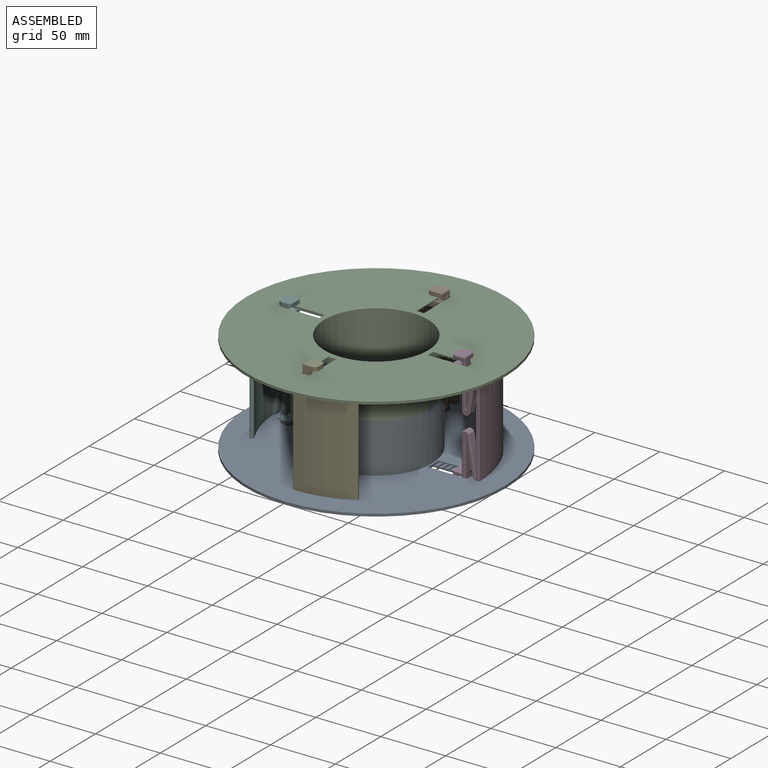
[diagram: assembled view]
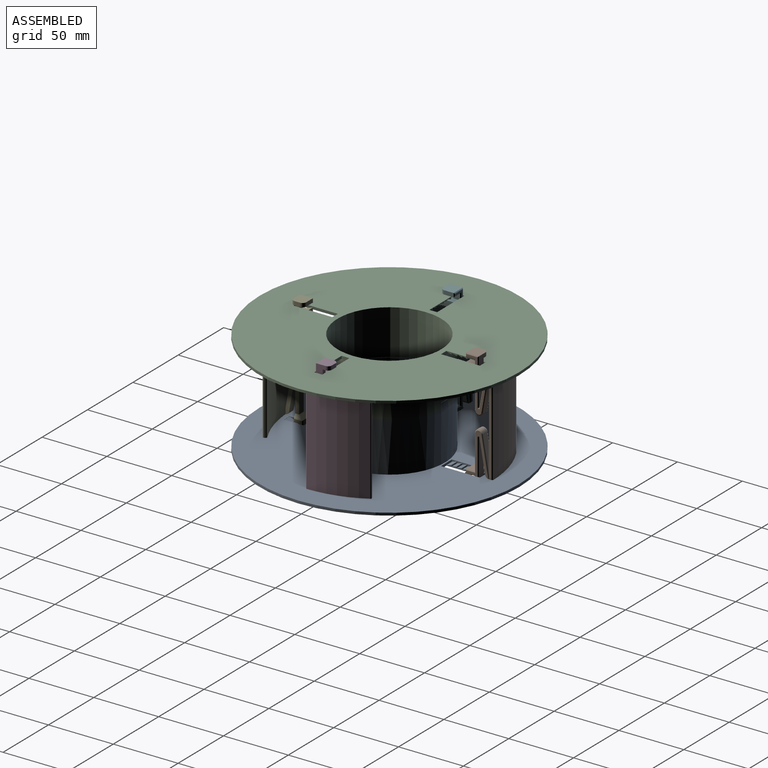
[diagram: assembled view, second angle]
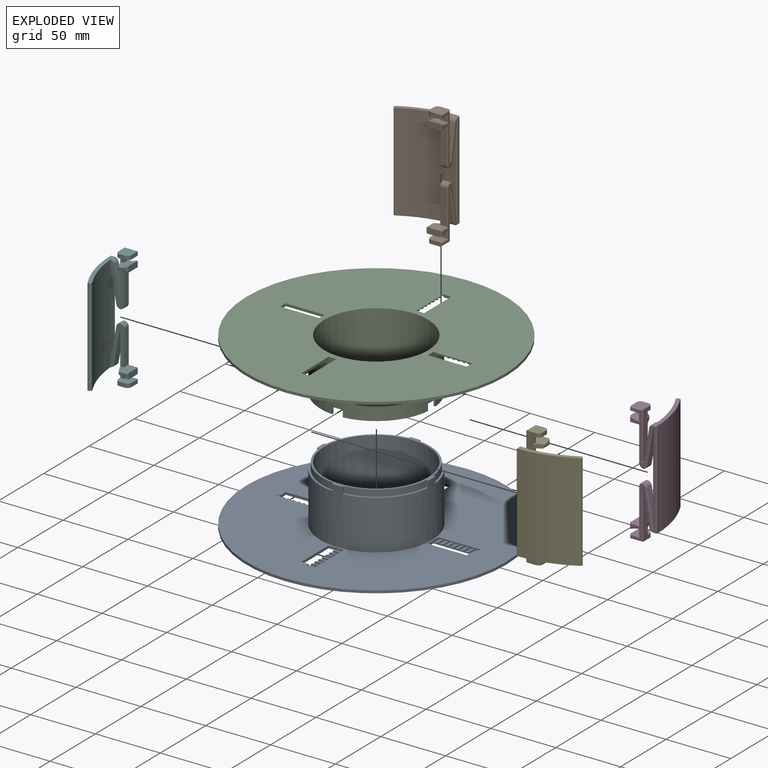
[diagram: exploded view]
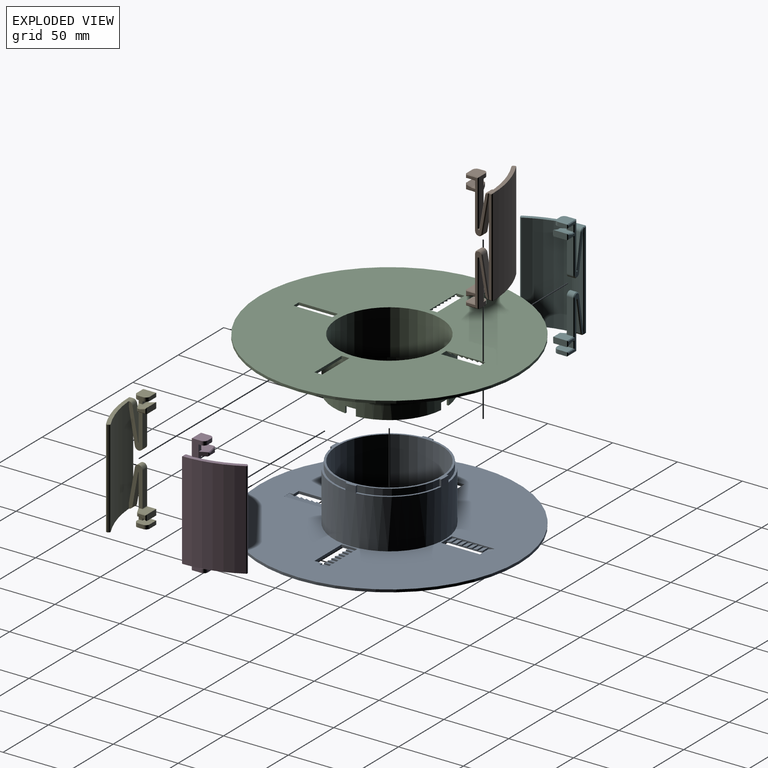
[diagram: exploded view, second angle]
ASSEMBLY  parts=6 mates=2
PART A: 110 faces, bbox 200x200x45 mm
  f0: plane 38.81x38.81mm, normal (0,0,1), area 87.5mm2, adj f81,f97,f102,f109
  f1: plane 38.81x38.81mm, normal (0,0,1), area 87.5mm2, adj f81,f99,f105,f106
  f2: plane 38.81x38.81mm, normal (0,0,1), area 87.5mm2, adj f81,f100,f104,f108
  f3: plane 6x1.2mm, normal (1,0,0), area 7.2mm2, adj f5,f8,f20,f23
  f4: plane 6x0.1mm, normal (-1,0,0), area 0.6mm2, adj f5,f6,f20,f69
  f5: plane 6x5mm, normal (-0.29,0,0.96), area 31.3mm2, adj f3,f4,f6,f20,f23
  f6: plane 3x1mm, normal (0,1,0), area 1.7mm2, adj f4,f5,f22,f69
  f7: plane 6x1.2mm, normal (1,0,0), area 7.2mm2, adj f8,f10,f20,f23
  f8: plane 6x4mm, normal (-0.29,0,0.96), area 25.1mm2, adj f3,f7,f20,f23
  f9: plane 6x1.2mm, normal (1,0,0), area 7.2mm2, adj f10,f12,f20,f23
  f10: plane 6x4mm, normal (-0.29,0,0.96), area 25.1mm2, adj f7,f9,f20,f23
  f11: plane 6x1.2mm, normal (1,0,0), area 7.2mm2, adj f12,f14,f20,f23
  f12: plane 6x4mm, normal (-0.29,0,0.96), area 25.1mm2, adj f9,f11,f20,f23
  f13: plane 6x1.2mm, normal (1,0,0), area 7.2mm2, adj f14,f16,f20,f23
  f14: plane 6x4mm, normal (-0.29,0,0.96), area 25.1mm2, adj f11,f13,f20,f23
  f15: plane 6x1.2mm, normal (1,0,0), area 7.2mm2, adj f16,f18,f20,f23
  f16: plane 6x4mm, normal (-0.29,0,0.96), area 25.1mm2, adj f13,f15,f20,f23
  f17: plane 6x1.2mm, normal (1,0,0), area 7.2mm2, adj f18,f19,f20,f23
  f18: plane 6x4mm, normal (-0.29,0,0.96), area 25.1mm2, adj f15,f17,f20,f23
  f19: plane 6x4mm, normal (-0.29,0,0.96), area 25.1mm2, adj f17,f20,f23,f24
  f20: plane 33x1.6mm, normal (0,-1,0), area 32.3mm2, adj f3,f4,f5,f7,f8,f9,f10,f11
  f21: plane 30x2mm, normal (0,1,0), area 60mm2, adj f22,f24,f69,f78
  f22: plane 6x2mm, normal (-1,0,0), area 12mm2, adj f6,f21,f23,f69,f78
  f23: plane 30x1.6mm, normal (0,-1,0), area 29.4mm2, adj f3,f5,f7,f8,f9,f10,f11,f12
  f24: plane 12x2mm, normal (1,0,0), area 21.6mm2, adj f19,f20,f21,f23,f69,f78
  f25: plane 6x1.2mm, normal (0,-1,0), area 7.2mm2, adj f27,f30,f42,f45
  f26: plane 6x0.1mm, normal (0,1,0), area 0.6mm2, adj f27,f28,f42,f69
  f27: plane 6x5mm, normal (0,0.29,0.96), area 31.3mm2, adj f25,f26,f28,f42,f45
  f28: plane 3x1mm, normal (1,0,0), area 1.7mm2, adj f26,f27,f44,f69
  f29: plane 6x1.2mm, normal (0,-1,0), area 7.2mm2, adj f30,f32,f42,f45
  f30: plane 6x4mm, normal (0,0.29,0.96), area 25.1mm2, adj f25,f29,f42,f45
  f31: plane 6x1.2mm, normal (0,-1,0), area 7.2mm2, adj f32,f34,f42,f45
  f32: plane 6x4mm, normal (0,0.29,0.96), area 25.1mm2, adj f29,f31,f42,f45
  f33: plane 6x1.2mm, normal (0,-1,0), area 7.2mm2, adj f34,f36,f42,f45
  f34: plane 6x4mm, normal (0,0.29,0.96), area 25.1mm2, adj f31,f33,f42,f45
  f35: plane 6x1.2mm, normal (0,-1,0), area 7.2mm2, adj f36,f38,f42,f45
  f36: plane 6x4mm, normal (0,0.29,0.96), area 25.1mm2, adj f33,f35,f42,f45
  f37: plane 6x1.2mm, normal (0,-1,0), area 7.2mm2, adj f38,f40,f42,f45
  f38: plane 6x4mm, normal (0,0.29,0.96), area 25.1mm2, adj f35,f37,f42,f45
  f39: plane 6x1.2mm, normal (0,-1,0), area 7.2mm2, adj f40,f41,f42,f45
  f40: plane 6x4mm, normal (0,0.29,0.96), area 25.1mm2, adj f37,f39,f42,f45
  f41: plane 6x4mm, normal (0,0.29,0.96), area 25.1mm2, adj f39,f42,f45,f46
  f42: plane 33x1.6mm, normal (-1,0,0), area 32.3mm2, adj f25,f26,f27,f29,f30,f31,f32,f33
  f43: plane 30x2mm, normal (1,0,0), area 60mm2, adj f44,f46,f69,f78
  f44: plane 6x2mm, normal (0,1,0), area 12mm2, adj f28,f43,f45,f69,f78
  f45: plane 30x1.6mm, normal (-1,0,0), area 29.4mm2, adj f25,f27,f29,f30,f31,f32,f33,f34
  f46: plane 12x2mm, normal (0,-1,0), area 21.6mm2, adj f41,f42,f43,f45,f69,f78
  f47: plane 6x1.2mm, normal (-1,0,0), area 7.2mm2, adj f49,f52,f64,f67
  f48: plane 6x0.1mm, normal (1,0,0), area 0.6mm2, adj f49,f50,f64,f69
  f49: plane 6x5mm, normal (0.29,0,0.96), area 31.3mm2, adj f47,f48,f50,f64,f67
  f50: plane 3x1mm, normal (0,-1,0), area 1.7mm2, adj f48,f49,f66,f69
  f51: plane 6x1.2mm, normal (-1,0,0), area 7.2mm2, adj f52,f54,f64,f67
  f52: plane 6x4mm, normal (0.29,0,0.96), area 25.1mm2, adj f47,f51,f64,f67
  f53: plane 6x1.2mm, normal (-1,0,0), area 7.2mm2, adj f54,f56,f64,f67
  f54: plane 6x4mm, normal (0.29,0,0.96), area 25.1mm2, adj f51,f53,f64,f67
  f55: plane 6x1.2mm, normal (-1,0,0), area 7.2mm2, adj f56,f58,f64,f67
  f56: plane 6x4mm, normal (0.29,0,0.96), area 25.1mm2, adj f53,f55,f64,f67
  f57: plane 6x1.2mm, normal (-1,0,0), area 7.2mm2, adj f58,f60,f64,f67
  f58: plane 6x4mm, normal (0.29,0,0.96), area 25.1mm2, adj f55,f57,f64,f67
  f59: plane 6x1.2mm, normal (-1,0,0), area 7.2mm2, adj f60,f62,f64,f67
  f60: plane 6x4mm, normal (0.29,0,0.96), area 25.1mm2, adj f57,f59,f64,f67
  f61: plane 6x1.2mm, normal (-1,0,0), area 7.2mm2, adj f62,f63,f64,f67
  f62: plane 6x4mm, normal (0.29,0,0.96), area 25.1mm2, adj f59,f61,f64,f67
  f63: plane 6x4mm, normal (0.29,0,0.96), area 25.1mm2, adj f61,f64,f67,f68
  f64: plane 33x1.6mm, normal (0,1,0), area 32.3mm2, adj f47,f48,f49,f51,f52,f53,f54,f55
  f65: plane 30x2mm, normal (0,-1,0), area 60mm2, adj f66,f68,f69,f78
  f66: plane 6x2mm, normal (1,0,0), area 12mm2, adj f50,f65,f67,f69,f78
  f67: plane 30x1.6mm, normal (0,1,0), area 29.4mm2, adj f47,f49,f51,f52,f53,f54,f55,f56
  f68: plane 12x2mm, normal (-1,0,0), area 21.6mm2, adj f63,f64,f65,f67,f69,f78
  f69: plane 200x200mm, normal (0,0,1), area 24095.1mm2, adj f4,f6,f20,f21,f22,f24,f26,f28
  f70: plane 6x4mm, normal (0,-0.29,0.96), area 25.1mm2, adj f77,f86,f92,f93
  f71: plane 6x4mm, normal (0,-0.29,0.96), area 25.1mm2, adj f77,f86,f91,f92
  f72: plane 6x4mm, normal (0,-0.29,0.96), area 25.1mm2, adj f77,f86,f90,f91
  f73: plane 6x4mm, normal (0,-0.29,0.96), area 25.1mm2, adj f77,f86,f89,f90
  f74: plane 6x4mm, normal (0,-0.29,0.96), area 25.1mm2, adj f77,f86,f88,f89
  f75: plane 6x4mm, normal (0,-0.29,0.96), area 25.1mm2, adj f77,f86,f87,f88
  f76: plane 6x4mm, normal (0,-0.29,0.96), area 25.1mm2, adj f77,f85,f86,f87
  f77: plane 30x1.6mm, normal (1,0,0), area 29.4mm2, adj f70,f71,f72,f73,f74,f75,f76,f78
  f78: plane 200x200mm, normal (0,0,-1), area 25669.4mm2, adj f21,f22,f23,f24,f43,f44,f45,f46
  f79: cylinder r=100mm len=200mm, axis (0,0,-1), area 1256.6mm2, adj f69,f78
  f80: cylinder r=40mm len=80mm, axis (0,0,-1), area 11309.7mm2, adj f78,f101
  f81: cylinder r=43mm len=86mm, axis (0,0,-1), area 10427mm2, adj f0,f1,f2,f69,f82,f101,f102,f103
  f82: plane 38.81x38.81mm, normal (0,0,1), area 87.5mm2, adj f81,f98,f103,f107
  f83: plane 30x2mm, normal (-1,0,0), area 60mm2, adj f69,f78,f84,f85
  f84: plane 6x2mm, normal (0,-1,0), area 12mm2, adj f69,f77,f78,f83,f96
  f85: plane 12x2mm, normal (0,1,0), area 21.6mm2, adj f69,f76,f77,f78,f83,f86
  f86: plane 33x1.6mm, normal (1,0,0), area 32.3mm2, adj f69,f70,f71,f72,f73,f74,f75,f76
  f87: plane 6x1.2mm, normal (0,1,0), area 7.2mm2, adj f75,f76,f77,f86
  f88: plane 6x1.2mm, normal (0,1,0), area 7.2mm2, adj f74,f75,f77,f86
  f89: plane 6x1.2mm, normal (0,1,0), area 7.2mm2, adj f73,f74,f77,f86
  f90: plane 6x1.2mm, normal (0,1,0), area 7.2mm2, adj f72,f73,f77,f86
  f91: plane 6x1.2mm, normal (0,1,0), area 7.2mm2, adj f71,f72,f77,f86
  f92: plane 6x1.2mm, normal (0,1,0), area 7.2mm2, adj f70,f71,f77,f86
  f93: plane 6x1.2mm, normal (0,1,0), area 7.2mm2, adj f70,f77,f86,f94
  f94: plane 6x5mm, normal (0,-0.29,0.96), area 31.3mm2, adj f77,f86,f93,f95,f96
  f95: plane 6x0.1mm, normal (0,-1,0), area 0.6mm2, adj f69,f86,f94,f96
  f96: plane 3x1mm, normal (-1,0,0), area 1.7mm2, adj f69,f84,f94,f95
  f97: cylinder r=41.5mm len=37.31mm, axis (0,0,-1), area 285.9mm2, adj f0,f101,f102,f109
  f98: cylinder r=41.5mm len=37.31mm, axis (0,0,-1), area 285.9mm2, adj f82,f101,f103,f107
  f99: cylinder r=41.5mm len=37.31mm, axis (0,0,-1), area 285.9mm2, adj f1,f101,f105,f106
  f100: cylinder r=41.5mm len=37.31mm, axis (0,0,-1), area 285.9mm2, adj f2,f101,f104,f108
  f101: plane 86x86mm, normal (0,0,1), area 432.1mm2, adj f80,f81,f97,f98,f99,f100,f102,f103
  f102: plane 5x1.51mm, normal (0,-1,0), area 7.5mm2, adj f0,f81,f97,f101
  f103: plane 5x1.51mm, normal (0,1,0), area 7.5mm2, adj f81,f82,f98,f101
  f104: plane 5x1.51mm, normal (0,-1,0), area 7.5mm2, adj f2,f81,f100,f101
  f105: plane 5x1.51mm, normal (0,1,0), area 7.5mm2, adj f1,f81,f99,f101
  f106: plane 5x1.51mm, normal (1,0,0), area 7.5mm2, adj f1,f81,f99,f101
  f107: plane 5x1.51mm, normal (-1,0,0), area 7.5mm2, adj f81,f82,f98,f101
  f108: plane 5x1.51mm, normal (1,0,0), area 7.5mm2, adj f2,f81,f100,f101
  f109: plane 5x1.51mm, normal (-1,0,0), area 7.5mm2, adj f0,f81,f97,f101
PART B: 102 faces, bbox 20.8x92.1x42.7 mm
  f0: plane 39.8x16.93mm, normal (0,0,-1), area 158.6mm2, adj f52,f53,f56,f57,f60,f61,f64,f65
  f1: plane 73.8x1.8mm, normal (0,0,-1), area 132.8mm2, adj f78,f82,f83,f85
  f2: plane 32.49x11.02mm, normal (0,0,1), area 182.7mm2, adj f4,f5,f9,f11,f16,f18,f23,f24
  f3: plane 5.1x4.5mm, normal (1,0,0), area 22.9mm2, adj f8,f12,f55,f101
  f4: plane 27.01x5.1mm, normal (-0.98,0.17,0), area 137.8mm2, adj f2,f16,f23,f84
  f5: plane 35.71x7.1mm, normal (-1,0,0), area 188.1mm2, adj f2,f6,f8,f12,f22,f25,f27,f66
  f6: plane 10.1x10mm, normal (0,-1,0), area 97.1mm2, adj f5,f7,f26,f27,f28,f62
  f7: plane 7.1x3mm, normal (1,0,0), area 21.3mm2, adj f6,f8,f28,f58
  f8: plane 10.1x10mm, normal (0,1,0), area 81.8mm2, adj f3,f5,f7,f12,f26,f27,f28,f54
  f9: plane 26.5x5.1mm, normal (1,0,0), area 135.2mm2, adj f2,f23,f75,f100
  f10: plane 42x13.75mm, normal (0,-1,0), area 130.4mm2, adj f14,f15,f16,f78,f83,f86,f87
  f11: plane 24.77x5.1mm, normal (0.98,-0.17,0), area 128.3mm2, adj f2,f24,f25,f74
  f12: plane 5x3.5mm, normal (0,0,1), area 15.1mm2, adj f3,f5,f8,f19,f101
  f13: plane 39.8x16.93mm, normal (0,0,-1), area 158.6mm2, adj f54,f55,f58,f59,f62,f63,f66,f67
  f14: plane 75x0.87mm, normal (0.5,0,0.87), area 75mm2, adj f10,f37,f86,f87
  f15: cylinder r=85.94mm len=75mm, axis (0,1,0), area 3253.8mm2, adj f10,f37,f78,f87
  f16: cylinder r=82.94mm len=75mm, axis (0,1,0), area 3103.5mm2, adj f2,f4,f10,f24,f29,f31,f37,f47
  f17: plane 10.5x4.5mm, normal (1,0,0), area 47.2mm2, adj f18,f20,f67,f94
  f18: plane 10.5x10mm, normal (0,1,0), area 79.9mm2, adj f2,f17,f22,f71,f96,f100
  f19: plane 10.5x5mm, normal (0,-1,0), area 27.4mm2, adj f12,f20,f22,f59,f95,f101
  f20: plane 10.5x5mm, normal (-0.29,-0.96,0), area 54.8mm2, adj f17,f19,f63,f93
  f21: plane 6.03x3.09mm, normal (0,0,1), area 13.6mm2, adj f93,f94,f95,f96,f97
  f22: plane 5.67x3mm, normal (-0.89,0,0.45), area 18.9mm2, adj f5,f18,f19,f95,f96,f97
  f23: cylinder r=3mm len=5.95mm, axis (0,0,-1), area 45.4mm2, adj f2,f4,f9,f80
  f24: cylinder r=3mm len=5.1mm, axis (0,0,-1), area 20.9mm2, adj f2,f11,f16,f79
  f25: cylinder r=0.2mm len=5.1mm, axis (0,0,1), area 3mm2, adj f2,f5,f11,f70
  f26: plane 4x3mm, normal (0,0,1), area 12mm2, adj f6,f8,f27,f28
  f27: cylinder r=3mm len=3mm, axis (0,1,0), area 14.1mm2, adj f5,f6,f8,f26
  f28: cylinder r=3mm len=3mm, axis (0,-1,0), area 14.1mm2, adj f6,f7,f8,f26
  f29: plane 32.49x11.02mm, normal (0,0,1), area 182.7mm2, adj f16,f31,f32,f36,f38,f41,f46,f47
  f30: plane 5.1x4.5mm, normal (1,0,0), area 22.9mm2, adj f35,f39,f52,f98
  f31: plane 27.01x5.1mm, normal (-0.98,-0.17,0), area 137.8mm2, adj f16,f29,f46,f81
  f32: plane 35.71x7.1mm, normal (-1,0,0), area 188.1mm2, adj f29,f33,f35,f39,f45,f48,f50,f65
  f33: plane 10.1x10mm, normal (0,1,0), area 97.1mm2, adj f32,f34,f49,f50,f51,f61
  f34: plane 7.1x3mm, normal (1,0,0), area 21.3mm2, adj f33,f35,f51,f57
  f35: plane 10.1x10mm, normal (0,-1,0), area 81.8mm2, adj f30,f32,f34,f39,f49,f50,f51,f53
  f36: plane 26.5x5.1mm, normal (1,0,0), area 135.2mm2, adj f29,f46,f72,f99
  f37: plane 42x13.75mm, normal (0,1,0), area 130.4mm2, adj f14,f15,f16,f78,f82,f86,f87
  f38: plane 24.77x5.1mm, normal (0.98,0.17,0), area 128.3mm2, adj f29,f47,f48,f73
  f39: plane 5x3.5mm, normal (0,0,1), area 15.1mm2, adj f30,f32,f35,f42,f98
  f40: plane 10.5x4.5mm, normal (1,0,0), area 47.2mm2, adj f41,f43,f64,f89
  f41: plane 10.5x10mm, normal (0,-1,0), area 79.9mm2, adj f29,f40,f45,f68,f91,f99
  f42: plane 10.5x5mm, normal (0,1,0), area 27.4mm2, adj f39,f43,f45,f56,f90,f98
  f43: plane 10.5x5mm, normal (-0.29,0.96,0), area 54.8mm2, adj f40,f42,f60,f88
  f44: plane 6.03x3.09mm, normal (0,0,1), area 13.6mm2, adj f88,f89,f90,f91,f92
  f45: plane 5.67x3mm, normal (-0.89,0,0.45), area 18.9mm2, adj f32,f41,f42,f90,f91,f92
  f46: cylinder r=3mm len=5.95mm, axis (0,0,-1), area 45.4mm2, adj f29,f31,f36,f76
  f47: cylinder r=3mm len=5.1mm, axis (0,0,-1), area 20.9mm2, adj f16,f29,f38,f77
  f48: cylinder r=0.2mm len=5.1mm, axis (0,0,1), area 3mm2, adj f29,f32,f38,f69
  f49: plane 4x3mm, normal (0,0,1), area 12mm2, adj f33,f35,f50,f51
  f50: cylinder r=3mm len=3mm, axis (0,-1,0), area 14.1mm2, adj f32,f33,f35,f49
  f51: cylinder r=3mm len=3mm, axis (0,1,0), area 14.1mm2, adj f33,f34,f35,f49
  f52: plane 6.27x0.82mm, normal (0.71,0,-0.71), area 4.8mm2, adj f0,f30,f53,f56,f98
  f53: plane 7.6x0.6mm, normal (0,-0.71,-0.71), area 5.9mm2, adj f0,f35,f52,f57
  f54: plane 7.6x0.6mm, normal (0,0.71,-0.71), area 5.9mm2, adj f8,f13,f55,f58
  f55: plane 6.27x0.82mm, normal (0.71,0,-0.71), area 4.8mm2, adj f3,f13,f54,f59,f101
  f56: plane 2.76x0.82mm, normal (0,0.71,-0.71), area 2mm2, adj f0,f42,f52,f60,f98
  f57: plane 3x0.6mm, normal (0.71,0,-0.71), area 2mm2, adj f0,f34,f53,f61
  f58: plane 3x0.6mm, normal (0.71,0,-0.71), area 2mm2, adj f7,f13,f54,f62
  f59: plane 2.76x0.82mm, normal (0,-0.71,-0.71), area 2mm2, adj f13,f19,f55,f63,f101
  f60: plane 5x2.1mm, normal (-0.2,0.68,-0.71), area 4.1mm2, adj f0,f43,f56,f64
  f61: plane 10x0.6mm, normal (0,0.71,-0.71), area 8mm2, adj f0,f33,f57,f65
  f62: plane 10x0.6mm, normal (0,-0.71,-0.71), area 8mm2, adj f6,f13,f58,f66
  f63: plane 5x2.1mm, normal (-0.2,-0.68,-0.71), area 4.1mm2, adj f13,f20,f59,f67
  f64: plane 4.5x0.6mm, normal (0.71,0,-0.71), area 3.2mm2, adj f0,f40,f60,f68
  f65: plane 35.71x0.6mm, normal (-0.71,0,-0.71), area 30mm2, adj f0,f32,f61,f69
  f66: plane 35.71x0.6mm, normal (-0.71,0,-0.71), area 30mm2, adj f5,f13,f62,f70
  f67: plane 4.5x0.6mm, normal (0.71,0,-0.71), area 3.2mm2, adj f13,f17,f63,f71
  f68: plane 7.67x0.82mm, normal (0,-0.71,-0.71), area 6mm2, adj f0,f41,f64,f72,f99
  f69: cone r=0.2mm half-angle=45deg, axis (0,0,-1), area 1.3mm2, adj f0,f48,f65,f73
  f70: cone r=0.8mm half-angle=45deg, axis (0,0,-1), area 1.3mm2, adj f13,f25,f66,f74
  f71: plane 7.67x0.82mm, normal (0,0.71,-0.71), area 6mm2, adj f13,f18,f67,f75,f100
  f72: plane 27.67x0.82mm, normal (0.71,0,-0.71), area 23.2mm2, adj f0,f36,f68,f76,f99
  f73: plane 24.87x4.96mm, normal (0.7,0.12,-0.71), area 21.3mm2, adj f0,f38,f69,f77
  f74: plane 24.87x4.96mm, normal (0.7,-0.12,-0.71), area 21.3mm2, adj f11,f13,f70,f79
  f75: plane 27.67x0.82mm, normal (0.71,0,-0.71), area 23.2mm2, adj f9,f13,f71,f80,f100
  f76: cone r=3mm half-angle=45deg, axis (0,0,1), area 6.8mm2, adj f0,f46,f72,f81
  f77: cone r=3mm half-angle=45deg, axis (0,0,1), area 3.2mm2, adj f0,f47,f73,f81,f82
  f78: plane 75x0.6mm, normal (-0.71,0,-0.7), area 63.4mm2, adj f1,f10,f15,f37,f82,f83
  f79: cone r=2.4mm half-angle=45deg, axis (0,0,1), area 3.2mm2, adj f13,f24,f74,f83,f84
  f80: cone r=2.4mm half-angle=45deg, axis (0,0,1), area 6.8mm2, adj f13,f23,f75,f84
  f81: plane 29.78x5.6mm, normal (-0.7,-0.12,-0.71), area 25mm2, adj f0,f16,f31,f76,f77,f82,f85
  f82: plane 3x0.6mm, normal (0,0.71,-0.71), area 2.1mm2, adj f1,f37,f77,f78,f81,f85
  f83: plane 3x0.6mm, normal (0,-0.71,-0.71), area 2.1mm2, adj f1,f10,f78,f79,f84,f85
  f84: plane 29.78x5.6mm, normal (-0.7,0.12,-0.71), area 25mm2, adj f4,f13,f16,f79,f80,f83,f85
  f85: plane 74.51x0.6mm, normal (0.7,0,-0.71), area 61.9mm2, adj f1,f16,f81,f82,f83,f84
  f86: cylinder r=1mm len=75mm, axis (0,1,0), area 116.9mm2, adj f10,f14,f16,f37
  f87: cylinder r=1mm len=75mm, axis (0,1,0), area 118.7mm2, adj f10,f14,f15,f37
  f88: plane 5x2.1mm, normal (-0.2,0.68,0.71), area 4.1mm2, adj f43,f44,f89,f90
  f89: plane 4.5x0.6mm, normal (0.71,0,0.71), area 3.2mm2, adj f40,f44,f88,f91
  f90: plane 2.39x0.6mm, normal (0,0.71,0.71), area 1.8mm2, adj f42,f44,f45,f88,f92
  f91: plane 7.3x0.6mm, normal (0,-0.71,0.71), area 5.7mm2, adj f41,f44,f45,f89,f92
  f92: plane 2.46x0.54mm, normal (-0.53,0,0.85), area 1.3mm2, adj f44,f45,f90,f91
  f93: plane 5x2.1mm, normal (-0.2,-0.68,0.71), area 4.1mm2, adj f20,f21,f94,f95
  f94: plane 4.5x0.6mm, normal (0.71,0,0.71), area 3.2mm2, adj f17,f21,f93,f96
  f95: plane 2.39x0.6mm, normal (0,-0.71,0.71), area 1.8mm2, adj f19,f21,f22,f93,f97
  f96: plane 7.3x0.6mm, normal (0,0.71,0.71), area 5.7mm2, adj f18,f21,f22,f94,f97
  f97: plane 2.46x0.54mm, normal (-0.53,0,0.85), area 1.3mm2, adj f21,f22,f95,f96
  f98: cylinder r=0.5mm len=5.1mm, axis (0,0,-1), area 3.9mm2, adj f30,f39,f42,f52,f56
  f99: cylinder r=0.5mm len=5.1mm, axis (0,0,-1), area 3.9mm2, adj f29,f36,f41,f68,f72
  f100: cylinder r=0.5mm len=5.1mm, axis (0,0,-1), area 3.9mm2, adj f2,f9,f18,f71,f75
  f101: cylinder r=0.5mm len=5.1mm, axis (0,0,-1), area 3.9mm2, adj f3,f12,f19,f55,f59
PART C: 110 faces, bbox 200x200x40 mm
  f0: cylinder r=40mm len=80mm, axis (0,0,1), area 8746.2mm2, adj f79,f109
  f1: plane 38.7x38.7mm, normal (0,0,-1), area 86.1mm2, adj f81,f99,f100,f101
  f2: plane 38.7x38.7mm, normal (0,0,-1), area 86.1mm2, adj f81,f105,f106,f107
  f3: plane 38.7x38.7mm, normal (0,0,-1), area 86.1mm2, adj f81,f97,f98,f108
  f4: plane 6x1.2mm, normal (1,0,0), area 7.2mm2, adj f6,f9,f21,f24
  f5: plane 6x0.1mm, normal (-1,0,0), area 0.6mm2, adj f6,f7,f21,f70
  f6: plane 6x5mm, normal (-0.29,0,-0.96), area 31.3mm2, adj f4,f5,f7,f21,f24
  f7: plane 3x1mm, normal (0,1,0), area 1.7mm2, adj f5,f6,f23,f70
  f8: plane 6x1.2mm, normal (1,0,0), area 7.2mm2, adj f9,f11,f21,f24
  f9: plane 6x4mm, normal (-0.29,0,-0.96), area 25.1mm2, adj f4,f8,f21,f24
  f10: plane 6x1.2mm, normal (1,0,0), area 7.2mm2, adj f11,f13,f21,f24
  f11: plane 6x4mm, normal (-0.29,0,-0.96), area 25.1mm2, adj f8,f10,f21,f24
  f12: plane 6x1.2mm, normal (1,0,0), area 7.2mm2, adj f13,f15,f21,f24
  f13: plane 6x4mm, normal (-0.29,0,-0.96), area 25.1mm2, adj f10,f12,f21,f24
  f14: plane 6x1.2mm, normal (1,0,0), area 7.2mm2, adj f15,f17,f21,f24
  f15: plane 6x4mm, normal (-0.29,0,-0.96), area 25.1mm2, adj f12,f14,f21,f24
  f16: plane 6x1.2mm, normal (1,0,0), area 7.2mm2, adj f17,f19,f21,f24
  f17: plane 6x4mm, normal (-0.29,0,-0.96), area 25.1mm2, adj f14,f16,f21,f24
  f18: plane 6x1.2mm, normal (1,0,0), area 7.2mm2, adj f19,f20,f21,f24
  f19: plane 6x4mm, normal (-0.29,0,-0.96), area 25.1mm2, adj f16,f18,f21,f24
  f20: plane 6x4mm, normal (-0.29,0,-0.96), area 25.1mm2, adj f18,f21,f24,f25
  f21: plane 33x1.6mm, normal (0,-1,0), area 32.3mm2, adj f4,f5,f6,f8,f9,f10,f11,f12
  f22: plane 30x2mm, normal (0,1,0), area 60mm2, adj f23,f25,f70,f79
  f23: plane 6x2mm, normal (-1,0,0), area 12mm2, adj f7,f22,f24,f70,f79
  f24: plane 30x1.6mm, normal (0,-1,0), area 29.4mm2, adj f4,f6,f8,f9,f10,f11,f12,f13
  f25: plane 12x2mm, normal (1,0,0), area 21.6mm2, adj f20,f21,f22,f24,f70,f79
  f26: plane 6x1.2mm, normal (0,-1,0), area 7.2mm2, adj f28,f31,f43,f46
  f27: plane 6x0.1mm, normal (0,1,0), area 0.6mm2, adj f28,f29,f43,f70
  f28: plane 6x5mm, normal (0,0.29,-0.96), area 31.3mm2, adj f26,f27,f29,f43,f46
  f29: plane 3x1mm, normal (1,0,0), area 1.7mm2, adj f27,f28,f45,f70
  f30: plane 6x1.2mm, normal (0,-1,0), area 7.2mm2, adj f31,f33,f43,f46
  f31: plane 6x4mm, normal (0,0.29,-0.96), area 25.1mm2, adj f26,f30,f43,f46
  f32: plane 6x1.2mm, normal (0,-1,0), area 7.2mm2, adj f33,f35,f43,f46
  f33: plane 6x4mm, normal (0,0.29,-0.96), area 25.1mm2, adj f30,f32,f43,f46
  f34: plane 6x1.2mm, normal (0,-1,0), area 7.2mm2, adj f35,f37,f43,f46
  f35: plane 6x4mm, normal (0,0.29,-0.96), area 25.1mm2, adj f32,f34,f43,f46
  f36: plane 6x1.2mm, normal (0,-1,0), area 7.2mm2, adj f37,f39,f43,f46
  f37: plane 6x4mm, normal (0,0.29,-0.96), area 25.1mm2, adj f34,f36,f43,f46
  f38: plane 6x1.2mm, normal (0,-1,0), area 7.2mm2, adj f39,f41,f43,f46
  f39: plane 6x4mm, normal (0,0.29,-0.96), area 25.1mm2, adj f36,f38,f43,f46
  f40: plane 6x1.2mm, normal (0,-1,0), area 7.2mm2, adj f41,f42,f43,f46
  f41: plane 6x4mm, normal (0,0.29,-0.96), area 25.1mm2, adj f38,f40,f43,f46
  f42: plane 6x4mm, normal (0,0.29,-0.96), area 25.1mm2, adj f40,f43,f46,f47
  f43: plane 33x1.6mm, normal (-1,0,0), area 32.3mm2, adj f26,f27,f28,f30,f31,f32,f33,f34
  f44: plane 30x2mm, normal (1,0,0), area 60mm2, adj f45,f47,f70,f79
  f45: plane 6x2mm, normal (0,1,0), area 12mm2, adj f29,f44,f46,f70,f79
  f46: plane 30x1.6mm, normal (-1,0,0), area 29.4mm2, adj f26,f28,f30,f31,f32,f33,f34,f35
  f47: plane 12x2mm, normal (0,-1,0), area 21.6mm2, adj f42,f43,f44,f46,f70,f79
  f48: plane 6x1.2mm, normal (-1,0,0), area 7.2mm2, adj f50,f53,f65,f68
  f49: plane 6x0.1mm, normal (1,0,0), area 0.6mm2, adj f50,f51,f65,f70
  f50: plane 6x5mm, normal (0.29,0,-0.96), area 31.3mm2, adj f48,f49,f51,f65,f68
  f51: plane 3x1mm, normal (0,-1,0), area 1.7mm2, adj f49,f50,f67,f70
  f52: plane 6x1.2mm, normal (-1,0,0), area 7.2mm2, adj f53,f55,f65,f68
  f53: plane 6x4mm, normal (0.29,0,-0.96), area 25.1mm2, adj f48,f52,f65,f68
  f54: plane 6x1.2mm, normal (-1,0,0), area 7.2mm2, adj f55,f57,f65,f68
  f55: plane 6x4mm, normal (0.29,0,-0.96), area 25.1mm2, adj f52,f54,f65,f68
  f56: plane 6x1.2mm, normal (-1,0,0), area 7.2mm2, adj f57,f59,f65,f68
  f57: plane 6x4mm, normal (0.29,0,-0.96), area 25.1mm2, adj f54,f56,f65,f68
  f58: plane 6x1.2mm, normal (-1,0,0), area 7.2mm2, adj f59,f61,f65,f68
  f59: plane 6x4mm, normal (0.29,0,-0.96), area 25.1mm2, adj f56,f58,f65,f68
  f60: plane 6x1.2mm, normal (-1,0,0), area 7.2mm2, adj f61,f63,f65,f68
  f61: plane 6x4mm, normal (0.29,0,-0.96), area 25.1mm2, adj f58,f60,f65,f68
  f62: plane 6x1.2mm, normal (-1,0,0), area 7.2mm2, adj f63,f64,f65,f68
  f63: plane 6x4mm, normal (0.29,0,-0.96), area 25.1mm2, adj f60,f62,f65,f68
  f64: plane 6x4mm, normal (0.29,0,-0.96), area 25.1mm2, adj f62,f65,f68,f69
  f65: plane 33x1.6mm, normal (0,1,0), area 32.3mm2, adj f48,f49,f50,f52,f53,f54,f55,f56
  f66: plane 30x2mm, normal (0,-1,0), area 60mm2, adj f67,f69,f70,f79
  f67: plane 6x2mm, normal (1,0,0), area 12mm2, adj f51,f66,f68,f70,f79
  f68: plane 30x1.6mm, normal (0,1,0), area 29.4mm2, adj f48,f50,f52,f53,f54,f55,f56,f57
  f69: plane 12x2mm, normal (-1,0,0), area 21.6mm2, adj f64,f65,f66,f68,f70,f79
  f70: plane 200x200mm, normal (0,0,-1), area 24095.1mm2, adj f5,f7,f21,f22,f23,f25,f27,f29
  f71: plane 6x4mm, normal (0,-0.29,-0.96), area 25.1mm2, adj f78,f86,f92,f93
  f72: plane 6x4mm, normal (0,-0.29,-0.96), area 25.1mm2, adj f78,f86,f91,f92
  f73: plane 6x4mm, normal (0,-0.29,-0.96), area 25.1mm2, adj f78,f86,f90,f91
  f74: plane 6x4mm, normal (0,-0.29,-0.96), area 25.1mm2, adj f78,f86,f89,f90
  f75: plane 6x4mm, normal (0,-0.29,-0.96), area 25.1mm2, adj f78,f86,f88,f89
  f76: plane 6x4mm, normal (0,-0.29,-0.96), area 25.1mm2, adj f78,f86,f87,f88
  f77: plane 6x4mm, normal (0,-0.29,-0.96), area 25.1mm2, adj f78,f85,f86,f87
  f78: plane 30x1.6mm, normal (1,0,0), area 29.4mm2, adj f71,f72,f73,f74,f75,f76,f77,f79
  f79: plane 200x200mm, normal (0,0,1), area 25669.4mm2, adj f0,f22,f23,f24,f25,f44,f45,f46
  f80: cylinder r=100mm len=200mm, axis (0,0,1), area 1256.6mm2, adj f70,f79
  f81: cylinder r=43mm len=86mm, axis (0,0,1), area 10095.9mm2, adj f1,f2,f3,f70,f82,f98,f99,f101
  f82: plane 38.7x38.7mm, normal (0,0,-1), area 86.1mm2, adj f81,f102,f103,f104
  f83: plane 30x2mm, normal (-1,0,0), area 60mm2, adj f70,f79,f84,f85
  f84: plane 6x2mm, normal (0,-1,0), area 12mm2, adj f70,f78,f79,f83,f96
  f85: plane 12x2mm, normal (0,1,0), area 21.6mm2, adj f70,f77,f78,f79,f83,f86
  f86: plane 33x1.6mm, normal (1,0,0), area 32.3mm2, adj f70,f71,f72,f73,f74,f75,f76,f77
  f87: plane 6x1.2mm, normal (0,1,0), area 7.2mm2, adj f76,f77,f78,f86
  f88: plane 6x1.2mm, normal (0,1,0), area 7.2mm2, adj f75,f76,f78,f86
  f89: plane 6x1.2mm, normal (0,1,0), area 7.2mm2, adj f74,f75,f78,f86
  f90: plane 6x1.2mm, normal (0,1,0), area 7.2mm2, adj f73,f74,f78,f86
  f91: plane 6x1.2mm, normal (0,1,0), area 7.2mm2, adj f72,f73,f78,f86
  f92: plane 6x1.2mm, normal (0,1,0), area 7.2mm2, adj f71,f72,f78,f86
  f93: plane 6x1.2mm, normal (0,1,0), area 7.2mm2, adj f71,f78,f86,f94
  f94: plane 6x5mm, normal (0,-0.29,-0.96), area 31.3mm2, adj f78,f86,f93,f95,f96
  f95: plane 6x0.1mm, normal (0,-1,0), area 0.6mm2, adj f70,f86,f94,f96
  f96: plane 3x1mm, normal (-1,0,0), area 1.7mm2, adj f70,f84,f94,f95
  f97: cylinder r=41.52mm len=37.22mm, axis (0,0,-1), area 296.4mm2, adj f3,f98,f108,f109
  f98: plane 5.2x1.49mm, normal (0,-1,0), area 7.7mm2, adj f3,f81,f97,f109
  f99: plane 5.2x1.49mm, normal (0,1,0), area 7.7mm2, adj f1,f81,f100,f109
  f100: cylinder r=41.52mm len=37.22mm, axis (0,0,-1), area 296.4mm2, adj f1,f99,f101,f109
  f101: plane 5.2x1.49mm, normal (-1,0,0), area 7.7mm2, adj f1,f81,f100,f109
  f102: plane 5.2x1.49mm, normal (1,0,0), area 7.7mm2, adj f81,f82,f103,f109
  f103: cylinder r=41.52mm len=37.22mm, axis (0,0,-1), area 296.4mm2, adj f82,f102,f104,f109
  f104: plane 5.2x1.49mm, normal (0,1,0), area 7.7mm2, adj f81,f82,f103,f109
  f105: plane 5.2x1.49mm, normal (0,-1,0), area 7.7mm2, adj f2,f81,f106,f109
  f106: cylinder r=41.52mm len=37.22mm, axis (0,0,-1), area 296.4mm2, adj f2,f105,f107,f109
  f107: plane 5.2x1.49mm, normal (1,0,0), area 7.7mm2, adj f2,f81,f106,f109
  f108: plane 5.2x1.49mm, normal (-1,0,0), area 7.7mm2, adj f3,f81,f97,f109
  f109: plane 86x86mm, normal (0,0,-1), area 437.9mm2, adj f0,f81,f97,f98,f99,f100,f101,f102
PART D: same geometry as B
PART E: same geometry as B
PART F: same geometry as B
PLACE A rot(axis=(0,0,1),0deg) t=(0,137.97,56.77)mm fixed
PLACE B rot(axis=(0.58,-0.58,-0.58),120deg) t=(6.08,135.64,96.77)mm
PLACE C rot(axis=(0,0,1),0deg) t=(0,137.97,56.77)mm
PLACE D rot(axis=(0,0.71,0.71),180deg) t=(-2.33,131.89,96.77)mm
PLACE E rot(axis=(0.58,0.58,0.58),120deg) t=(-6.08,140.3,96.77)mm
PLACE F rot(axis=(1,0,0),90deg) t=(2.33,144.04,96.77)mm
MATE slider A.f81 <-> C.f81  axis (0,0,1) through (0,137.97,96.77)mm
MATE parallel B.f37 <-> C.f100  axis (0,0,1) through (-15.76,216.25,134.27)mm
